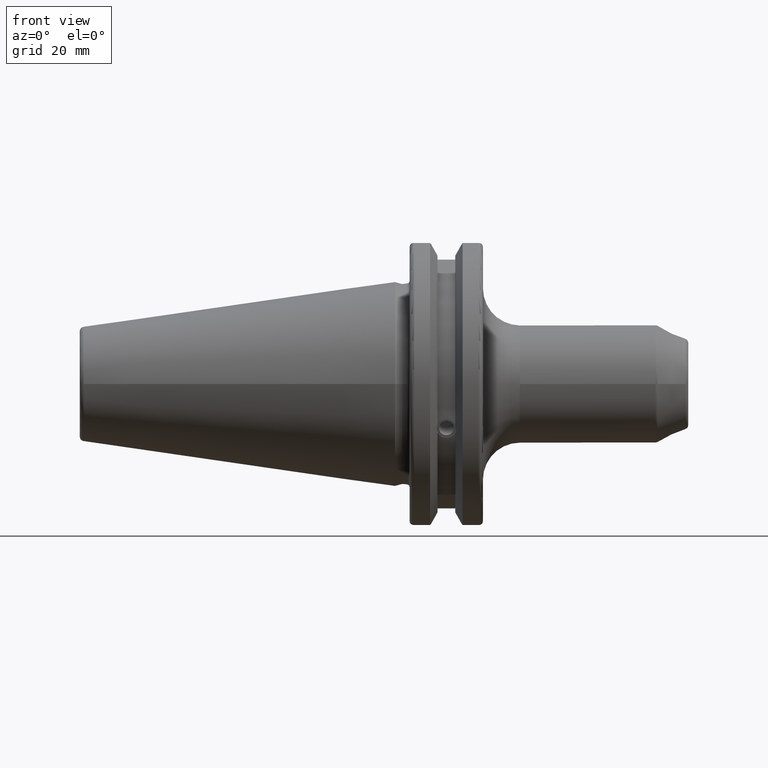
[diagram: clean part render]
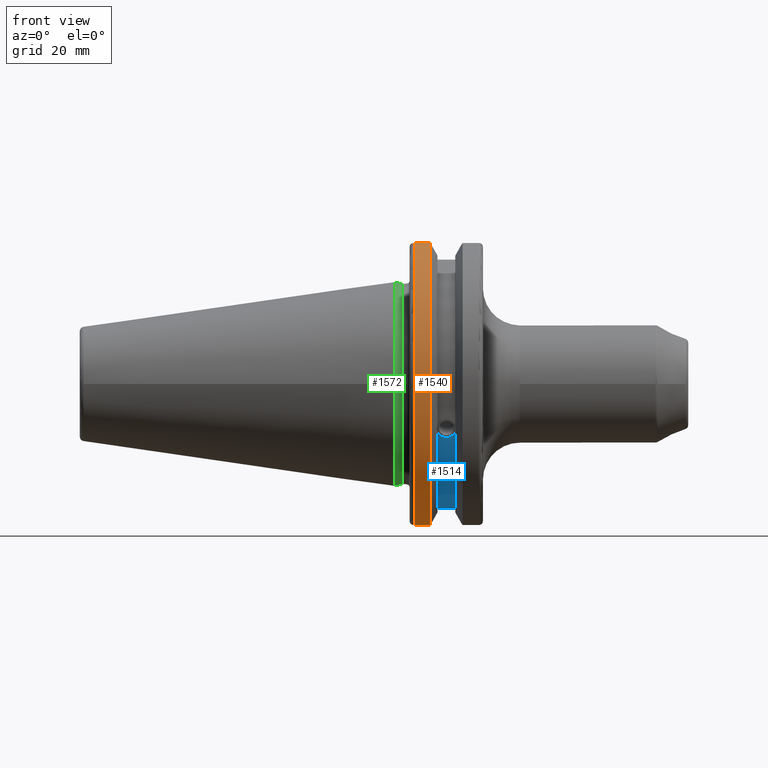
[diagram: same view with three faces highlighted in distinct colors, each labeled with its STEP entity id]
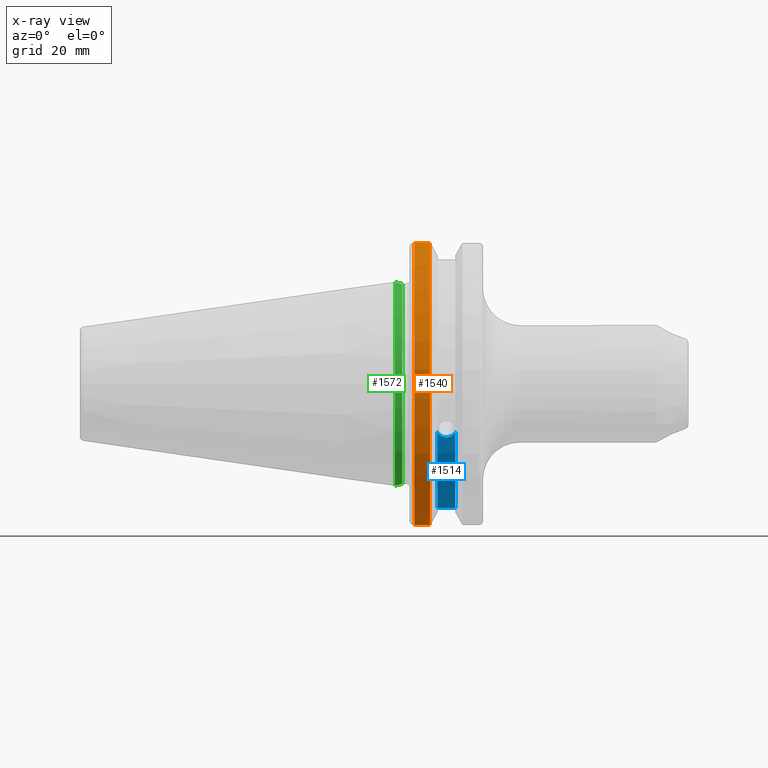
[diagram: x-ray of the same camera — body ghosted, the three highlighted faces saturated]
A machine part, front view with three faces highlighted in distinct colors.
The next image is the same camera in x-ray (body ghosted, the three faces saturated) — at least one of them is partly hidden behind the body in this view.
Their STEP definitions:

[orange] entity #1540 — the highlighted cylindrical surface (partial cylindrical patch) has radius 31.75 mm, axis along (1, 0, 0).
#165=LINE('',#2962,#257);
#166=LINE('',#2968,#258);
#257=VECTOR('',#2095,10.);
#258=VECTOR('',#2098,10.);
#299=CYLINDRICAL_SURFACE('',#1722,31.75);
#408=FACE_OUTER_BOUND('',#506,.T.);
#506=EDGE_LOOP('',(#1323,#1324,#1325,#1326));
#599=CIRCLE('',#1720,31.75);
#600=CIRCLE('',#1723,31.75);
#753=VERTEX_POINT('',#2941);
#754=VERTEX_POINT('',#2950);
#755=VERTEX_POINT('',#2961);
#756=VERTEX_POINT('',#2967);
#959=EDGE_CURVE('',#753,#754,#599,.T.);
#961=EDGE_CURVE('',#754,#755,#165,.T.);
#963=EDGE_CURVE('',#756,#753,#166,.T.);
#964=EDGE_CURVE('',#755,#756,#600,.T.);
#1323=ORIENTED_EDGE('',*,*,#959,.F.);
#1324=ORIENTED_EDGE('',*,*,#963,.F.);
#1325=ORIENTED_EDGE('',*,*,#964,.F.);
#1326=ORIENTED_EDGE('',*,*,#961,.F.);
#1540=ADVANCED_FACE('',(#408),#299,.T.);
#1720=AXIS2_PLACEMENT_3D('',#2951,#2091,#2092);
#1722=AXIS2_PLACEMENT_3D('',#2966,#2096,#2097);
#1723=AXIS2_PLACEMENT_3D('',#2969,#2099,#2100);
#2091=DIRECTION('center_axis',(-1.,0.,0.));
#2092=DIRECTION('ref_axis',(0.,-1.,1.60812264967664E-16));
#2095=DIRECTION('',(1.,0.,0.));
#2096=DIRECTION('center_axis',(1.,0.,0.));
#2097=DIRECTION('ref_axis',(0.,-1.,1.22464679914735E-16));
#2098=DIRECTION('',(-1.,0.,0.));
#2099=DIRECTION('center_axis',(1.,0.,0.));
#2100=DIRECTION('ref_axis',(0.,0.,-1.));
#2941=CARTESIAN_POINT('',(4.175,-8.67204822802685,-30.5427254764662));
#2950=CARTESIAN_POINT('',(4.175,-8.67204822802685,30.5427254764662));
#2951=CARTESIAN_POINT('Origin',(4.175,0.,0.));
#2961=CARTESIAN_POINT('',(7.60793323092436,-8.67204822802685,30.5427254764662));
#2962=CARTESIAN_POINT('',(5.39146661546218,-8.67204822802685,30.5427254764662));
#2966=CARTESIAN_POINT('Origin',(5.39146661546218,0.,0.));
#2967=CARTESIAN_POINT('',(7.60793323092436,-8.67204822802685,-30.5427254764662));
#2968=CARTESIAN_POINT('',(5.39146661546218,-8.67204822802685,-30.5427254764662));
#2969=CARTESIAN_POINT('Origin',(7.60793323092436,0.,0.));

[blue] entity #1514 — the highlighted cylindrical surface (partial cylindrical patch) has radius 28.15 mm, axis along (1, 0, 0).
#73=B_SPLINE_CURVE_WITH_KNOTS('',3,(#2552,#2553,#2554,#2555,#2556,#2557,
#2558,#2559,#2560,#2561,#2562,#2563,#2564,#2565,#2566),.UNSPECIFIED.,.F.,
 .F.,(4,2,2,3,2,2,4),(-0.231446873660085,-0.158271583089134,-0.0791357915445672,
0.,0.0791357915445671,0.158271583089134,0.231446873660466),
 .UNSPECIFIED.);
#125=LINE('',#2624,#217);
#217=VECTOR('',#1943,10.);
#290=CYLINDRICAL_SURFACE('',#1664,28.15);
#382=FACE_OUTER_BOUND('',#475,.T.);
#475=EDGE_LOOP('',(#1156,#1157,#1158,#1159));
#576=CIRCLE('',#1663,28.15);
#577=CIRCLE('',#1665,28.15);
#671=VERTEX_POINT('',#2549);
#672=VERTEX_POINT('',#2551);
#685=VERTEX_POINT('',#2618);
#686=VERTEX_POINT('',#2622);
#843=EDGE_CURVE('',#672,#671,#73,.T.);
#861=EDGE_CURVE('',#672,#685,#576,.T.);
#863=EDGE_CURVE('',#671,#686,#577,.T.);
#864=EDGE_CURVE('',#686,#685,#125,.T.);
#1156=ORIENTED_EDGE('',*,*,#843,.T.);
#1157=ORIENTED_EDGE('',*,*,#863,.T.);
#1158=ORIENTED_EDGE('',*,*,#864,.T.);
#1159=ORIENTED_EDGE('',*,*,#861,.F.);
#1514=ADVANCED_FACE('',(#382),#290,.T.);
#1663=AXIS2_PLACEMENT_3D('',#2619,#1936,#1937);
#1664=AXIS2_PLACEMENT_3D('',#2621,#1939,#1940);
#1665=AXIS2_PLACEMENT_3D('',#2623,#1941,#1942);
#1936=DIRECTION('center_axis',(1.,0.,0.));
#1937=DIRECTION('ref_axis',(0.,0.,-1.));
#1939=DIRECTION('center_axis',(1.,0.,0.));
#1940=DIRECTION('ref_axis',(0.,1.,0.));
#1941=DIRECTION('center_axis',(1.,0.,0.));
#1942=DIRECTION('ref_axis',(0.,0.,-1.));
#1943=DIRECTION('',(1.,0.,0.));
#2549=CARTESIAN_POINT('',(9.2191,-26.1451788594704,-10.4332220529567));
#2551=CARTESIAN_POINT('',(13.0491,-26.1451788594704,-10.4332220529567));
#2552=CARTESIAN_POINT('Ctrl Pts',(13.0491,-26.1451788594704,-10.4332220529567));
#2553=CARTESIAN_POINT('Ctrl Pts',(12.9428694290343,-26.0576536126147,-10.6525563316815));
#2554=CARTESIAN_POINT('Ctrl Pts',(12.791379862294,-25.9751489313128,-10.8509873904882));
#2555=CARTESIAN_POINT('Ctrl Pts',(12.4326293734259,-25.8346412777187,-11.1816210830117));
#2556=CARTESIAN_POINT('Ctrl Pts',(12.1965549887012,-25.7695111693635,-11.3298867884858));
#2557=CARTESIAN_POINT('Ctrl Pts',(11.6791874573612,-25.6822868299377,-11.5262389251846));
#2558=CARTESIAN_POINT('Ctrl Pts',(11.3978859718152,-25.6603958057616,-11.5743935949859));
#2559=CARTESIAN_POINT('Ctrl Pts',(11.1341,-25.6603958057616,-11.5743935949859));
#2560=CARTESIAN_POINT('Ctrl Pts',(10.8703140281848,-25.6603958057616,-11.5743935949859));
#2561=CARTESIAN_POINT('Ctrl Pts',(10.5890125426388,-25.6822868299377,-11.5262389251846));
#2562=CARTESIAN_POINT('Ctrl Pts',(10.0716450112988,-25.7695111693635,-11.3298867884858));
#2563=CARTESIAN_POINT('Ctrl Pts',(9.83557062657411,-25.8346412777187,-11.1816210830117));
#2564=CARTESIAN_POINT('Ctrl Pts',(9.4768201377051,-25.9751489313131,-10.8509873904873));
#2565=CARTESIAN_POINT('Ctrl Pts',(9.32533057097183,-26.0576536126096,-10.6525563316942));
#2566=CARTESIAN_POINT('Ctrl Pts',(9.2191,-26.1451788594704,-10.4332220529567));
#2618=CARTESIAN_POINT('',(13.0491,-8.19,-26.932255754021));
#2619=CARTESIAN_POINT('Origin',(13.0491,0.,0.));
#2621=CARTESIAN_POINT('Origin',(11.1341,0.,0.));
#2622=CARTESIAN_POINT('',(9.2191,-8.19,-26.932255754021));
#2623=CARTESIAN_POINT('Origin',(9.2191,0.,0.));
#2624=CARTESIAN_POINT('',(11.1341,-8.19,-26.932255754021));

[green] entity #1572 — the highlighted conical surface has half-angle 15 deg.
#60=CONICAL_SURFACE('',#1772,22.0125,0.261799387799148);
#187=LINE('',#3088,#279);
#279=VECTOR('',#2219,22.0125);
#440=FACE_OUTER_BOUND('',#541,.T.);
#541=EDGE_LOOP('',(#1464,#1465,#1466,#1467));
#596=CIRCLE('',#1710,21.8);
#607=CIRCLE('',#1736,22.225);
#734=VERTEX_POINT('',#2812);
#764=VERTEX_POINT('',#3015);
#927=EDGE_CURVE('',#734,#734,#596,.T.);
#976=EDGE_CURVE('',#764,#764,#607,.T.);
#1008=EDGE_CURVE('',#734,#764,#187,.T.);
#1464=ORIENTED_EDGE('',*,*,#927,.F.);
#1465=ORIENTED_EDGE('',*,*,#1008,.T.);
#1466=ORIENTED_EDGE('',*,*,#976,.T.);
#1467=ORIENTED_EDGE('',*,*,#1008,.F.);
#1572=ADVANCED_FACE('',(#440),#60,.T.);
#1710=AXIS2_PLACEMENT_3D('',#2814,#2058,#2059);
#1736=AXIS2_PLACEMENT_3D('',#3016,#2126,#2127);
#1772=AXIS2_PLACEMENT_3D('',#3087,#2217,#2218);
#2058=DIRECTION('center_axis',(1.,0.,0.));
#2059=DIRECTION('ref_axis',(0.,0.,-1.));
#2126=DIRECTION('center_axis',(1.,0.,0.));
#2127=DIRECTION('ref_axis',(0.,0.,-1.));
#2217=DIRECTION('center_axis',(-1.,0.,0.));
#2218=DIRECTION('ref_axis',(0.,1.,0.));
#2219=DIRECTION('',(-0.965925826289069,-0.258819045102519,-3.16961915143175E-17));
#2812=CARTESIAN_POINT('',(1.58612159321676,-21.8,-2.66973002214123E-15));
#2814=CARTESIAN_POINT('Origin',(1.58612159321676,0.,0.));
#3015=CARTESIAN_POINT('',(0.,-22.225,-2.72177751110499E-15));
#3016=CARTESIAN_POINT('Origin',(0.,0.,0.));
#3087=CARTESIAN_POINT('Origin',(0.793060796608382,0.,0.));
#3088=CARTESIAN_POINT('',(0.793060796608382,-22.0125,-2.69575376662311E-15));